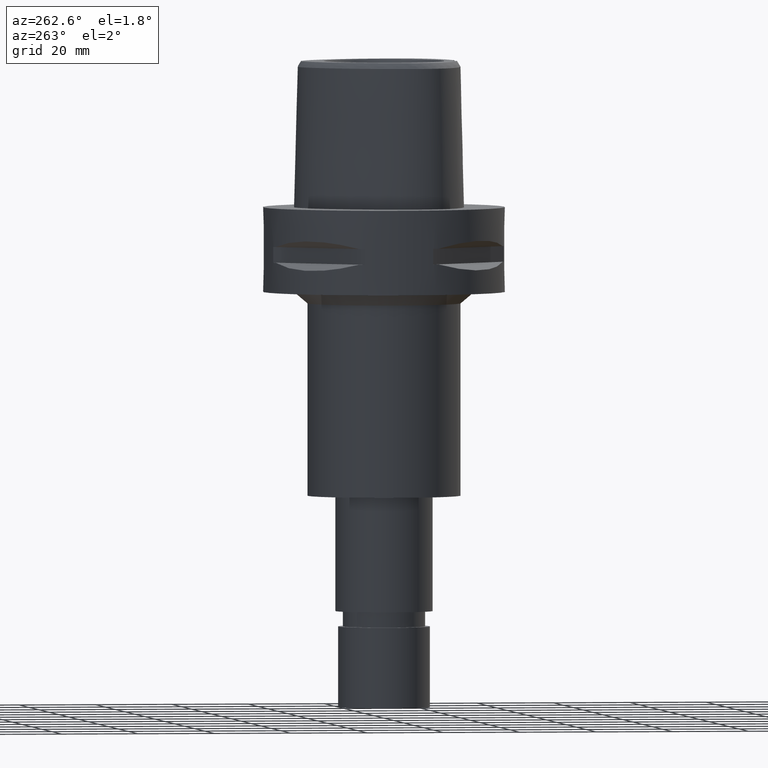
[diagram: clean part render]
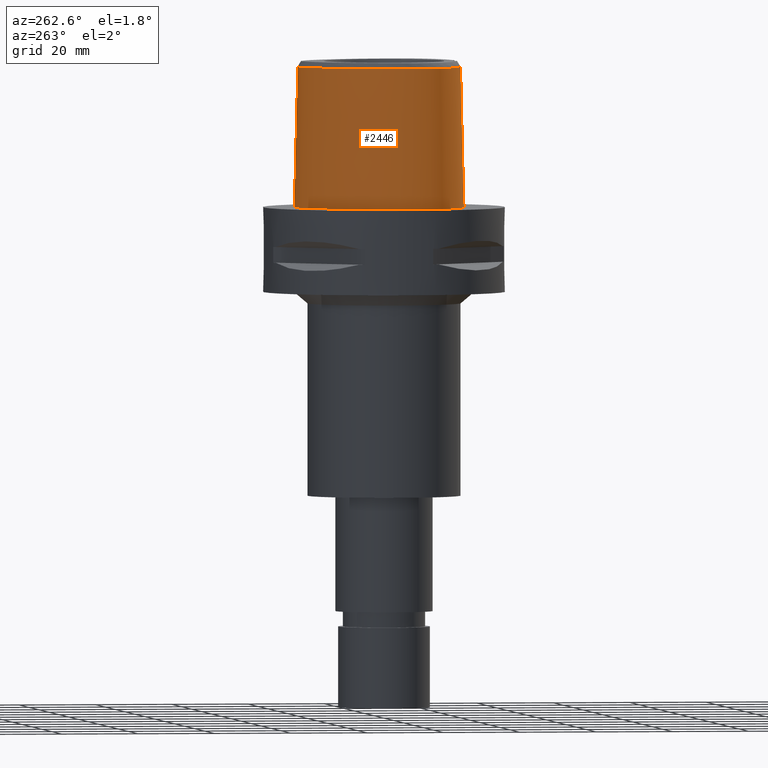
[diagram: same view with one face highlighted and labeled with its STEP entity id]
A machine part, auxiliary view. The second image highlights one B-rep face of the part: STEP entity #2446.
In plain terms, the highlighted face is a freeform B-spline surface patch.
Its self-contained STEP definition (entity closure, byte-faithful):
#192=CARTESIAN_POINT('',(-3.637738201364E0,-1.956971413237E1,3.652186244848E1));
#193=CARTESIAN_POINT('',(-4.560158907346E0,-1.947143337625E1,3.652183460621E1));
#194=CARTESIAN_POINT('',(-6.332490901644E0,-1.920572733587E1,3.652188379830E1));
#195=CARTESIAN_POINT('',(-8.740534769296E0,-1.863605197490E1,3.652185473939E1));
#196=CARTESIAN_POINT('',(-1.078875333779E1,-1.797109471699E1,3.652187883629E1));
#197=CARTESIAN_POINT('',(-1.260106402785E1,-1.721902815734E1,3.652186366389E1));
#198=CARTESIAN_POINT('',(-1.425647951327E1,-1.635855614140E1,3.652186983084E1));
#199=CARTESIAN_POINT('',(-1.570742126751E1,-1.542180822191E1,3.652187070094E1));
#200=CARTESIAN_POINT('',(-1.692838495225E1,-1.445243579093E1,3.652186371196E1));
#201=CARTESIAN_POINT('',(-1.794807955122E1,-1.346119101780E1,3.652187504976E1));
#202=CARTESIAN_POINT('',(-1.879347921895E1,-1.244911691061E1,3.652185110221E1));
#203=CARTESIAN_POINT('',(-1.948233597599E1,-1.142172722407E1,3.652186520296E1));
#204=CARTESIAN_POINT('',(-2.005025596415E1,-1.033879974977E1,3.652187120918E1));
#205=CARTESIAN_POINT('',(-2.052689249114E1,-9.137426659141E0,3.652187389002E1));
#206=CARTESIAN_POINT('',(-2.090372515842E1,-7.793064566768E0,3.652186861290E1));
#207=CARTESIAN_POINT('',(-2.116402580445E1,-6.298266466778E0,3.652186520813E1));
#208=CARTESIAN_POINT('',(-2.128915805881E1,-4.610628511458E0,3.652187207782E1));
#209=CARTESIAN_POINT('',(-2.124899103472E1,-2.770628323703E0,3.652186448572E1));
#210=CARTESIAN_POINT('',(-2.103746568196E1,-8.521470214658E-1,
3.652186904573E1));
#211=CARTESIAN_POINT('',(-2.064453108235E1,1.191621979844E0,3.652186470490E1));
#212=CARTESIAN_POINT('',(-2.000834842177E1,3.491890258725E0,3.652186280489E1));
#213=CARTESIAN_POINT('',(-1.908297293211E1,5.996252166364E0,3.652187047901E1));
#214=CARTESIAN_POINT('',(-1.790343325696E1,8.519299290575E0,3.652185757552E1));
#215=CARTESIAN_POINT('',(-1.649956399231E1,1.097698504016E1,3.652186524308E1));
#216=CARTESIAN_POINT('',(-1.492053239747E1,1.328144481386E1,3.652186970709E1));
#217=CARTESIAN_POINT('',(-1.322428615311E1,1.536354361130E1,3.652186377725E1));
#218=CARTESIAN_POINT('',(-1.153399233131E1,1.711359257375E1,3.652186042581E1));
#219=CARTESIAN_POINT('',(-9.949618507775E0,1.850927678704E1,3.652187154028E1));
#220=CARTESIAN_POINT('',(-8.389884192782E0,1.967566957136E1,3.652186493940E1));
#221=CARTESIAN_POINT('',(-6.831967983638E0,2.064216380886E1,3.652187265771E1));
#222=CARTESIAN_POINT('',(-5.310871754551E0,2.139896711785E1,3.652186762590E1));
#223=CARTESIAN_POINT('',(-3.868196932843E0,2.194740320780E1,3.652186656051E1));
#224=CARTESIAN_POINT('',(-2.510941578303E0,2.231222700870E1,3.652187435400E1));
#225=CARTESIAN_POINT('',(-1.219201044760E0,2.251876035111E1,3.652180035304E1));
#226=CARTESIAN_POINT('',(-4.071750475777E-1,2.256201468012E1,3.652186680743E1));
#227=CARTESIAN_POINT('',(-1.721533821430E-11,2.256201468012E1,
3.652186680744E1));
#239=CARTESIAN_POINT('',(-3.637738201364E0,-1.956971413237E1,3.652186244848E1));
#240=CARTESIAN_POINT('',(-3.649042726833E0,-1.958170231834E1,3.599710491520E1));
#241=CARTESIAN_POINT('',(-3.671106183707E0,-1.960533297179E1,3.494764182412E1));
#242=CARTESIAN_POINT('',(-3.704089539557E0,-1.964135162194E1,3.337369009748E1));
#243=CARTESIAN_POINT('',(-3.726005756395E0,-1.966575923510E1,3.232454432382E1));
#244=CARTESIAN_POINT('',(-3.736696126116E0,-1.967778323257E1,3.18E1));
#249=DIRECTION('',(-1.665636293796E-9,-2.499140646182E-2,-9.996876660253E-1));
#250=VECTOR('',#249,1.225382733632E1);
#251=CARTESIAN_POINT('',(2.041042029991E-8,-1.988004246002E1,3.180000004972E1));
#252=LINE('',#251,#250);
#256=CARTESIAN_POINT('',(0.E0,-2.018628283969E1,1.955E1));
#257=CARTESIAN_POINT('',(-3.535025939877E-1,-2.018628283969E1,1.955E1));
#258=CARTESIAN_POINT('',(-1.060473937797E0,-2.017767216830E1,1.945681925277E1));
#259=CARTESIAN_POINT('',(-2.047701543704E0,-2.014309980526E1,1.904804674692E1));
#260=CARTESIAN_POINT('',(-2.897566485546E0,-2.009784253651E1,1.839607694624E1));
#261=CARTESIAN_POINT('',(-3.549651586843E0,-2.005725832781E1,1.754541454944E1));
#262=CARTESIAN_POINT('',(-3.958413413604E0,-2.003677385322E1,1.655463469819E1));
#263=CARTESIAN_POINT('',(-4.096145834776E0,-2.004693977811E1,1.549746639839E1));
#264=CARTESIAN_POINT('',(-3.956998654836E0,-2.009014971096E1,1.444056005517E1));
#265=CARTESIAN_POINT('',(-3.548403793673E0,-2.016023887783E1,1.345303113610E1));
#266=CARTESIAN_POINT('',(-2.897581606986E0,-2.024315417861E1,1.260386165506E1));
#267=CARTESIAN_POINT('',(-2.045567629947E0,-2.032097908031E1,1.195043067914E1));
#268=CARTESIAN_POINT('',(-1.056750709433E0,-2.037569617876E1,1.154226914409E1));
#269=CARTESIAN_POINT('',(-3.518691721553E-1,-2.038876923348E1,1.145E1));
#270=CARTESIAN_POINT('',(-9.433993878922E-13,-2.038876923348E1,1.145E1));
#275=DIRECTION('',(-5.771733019309E-13,-2.499051295390E-2,-9.996876883619E-1));
#276=VECTOR('',#275,1.145357708542E1);
#277=CARTESIAN_POINT('',(-9.433993878922E-13,-2.038876923348E1,1.145E1));
#278=LINE('',#277,#276);
#340=CARTESIAN_POINT('',(4.563147377965E-11,2.347499999999E1,
5.514107688972E-14));
#341=CARTESIAN_POINT('',(-4.146369803762E-1,2.347499999999E1,
5.514107688972E-14));
#342=CARTESIAN_POINT('',(-1.261769283380E0,2.343214404896E1,
-2.559106284495E-14));
#343=CARTESIAN_POINT('',(-2.581151367777E0,2.322972899416E1,0.E0));
#344=CARTESIAN_POINT('',(-3.963955223680E0,2.287417817924E1,0.E0));
#345=CARTESIAN_POINT('',(-5.416410883203E0,2.234583206214E1,0.E0));
#346=CARTESIAN_POINT('',(-6.943963820642E0,2.162055067075E1,0.E0));
#347=CARTESIAN_POINT('',(-8.546562613361E0,2.067110855086E1,0.E0));
#348=CARTESIAN_POINT('',(-1.021591793266E1,1.947050358962E1,0.E0));
#349=CARTESIAN_POINT('',(-1.193265892210E1,1.799659333497E1,0.E0));
#350=CARTESIAN_POINT('',(-1.366187567380E1,1.624119475134E1,0.E0));
#351=CARTESIAN_POINT('',(-1.535536276914E1,1.421588744194E1,0.E0));
#352=CARTESIAN_POINT('',(-1.695154970834E1,1.196273951856E1,0.E0));
#353=CARTESIAN_POINT('',(-1.838926030375E1,9.548635880090E0,0.E0));
#354=CARTESIAN_POINT('',(-1.962133987807E1,7.049146925036E0,0.E0));
#355=CARTESIAN_POINT('',(-2.061435990297E1,4.550643648138E0,0.E0));
#356=CARTESIAN_POINT('',(-2.135514936018E1,2.133582093255E0,0.E0));
#357=CARTESIAN_POINT('',(-2.185212389229E1,-1.457936405733E-1,0.E0));
#358=CARTESIAN_POINT('',(-2.212691486636E1,-2.253623760176E0,0.E0));
#359=CARTESIAN_POINT('',(-2.220771557397E1,-4.179131729167E0,0.E0));
#360=CARTESIAN_POINT('',(-2.212280964939E1,-5.923899373955E0,0.E0));
#361=CARTESIAN_POINT('',(-2.189733287562E1,-7.500236824242E0,0.E0));
#362=CARTESIAN_POINT('',(-2.155157325801E1,-8.923804946215E0,0.E0));
#363=CARTESIAN_POINT('',(-2.109976738570E1,-1.021229684822E1,0.E0));
#364=CARTESIAN_POINT('',(-2.055361095219E1,-1.137932601044E1,0.E0));
#365=CARTESIAN_POINT('',(-1.990268084837E1,-1.246296115997E1,0.E0));
#366=CARTESIAN_POINT('',(-1.912079644801E1,-1.350746708852E1,0.E0));
#367=CARTESIAN_POINT('',(-1.817598660389E1,-1.453694700062E1,0.E0));
#368=CARTESIAN_POINT('',(-1.705588452346E1,-1.553926995104E1,0.E0));
#369=CARTESIAN_POINT('',(-1.573520699537E1,-1.651184072859E1,0.E0));
#370=CARTESIAN_POINT('',(-1.419020473772E1,-1.744259491527E1,0.E0));
#371=CARTESIAN_POINT('',(-1.239948808272E1,-1.831330611511E1,0.E0));
#372=CARTESIAN_POINT('',(-1.035005531072E1,-1.909824432408E1,0.E0));
#373=CARTESIAN_POINT('',(-8.043778815247E0,-1.976500909009E1,0.E0));
#374=CARTESIAN_POINT('',(-5.509328552198E0,-2.027746157226E1,0.E0));
#375=CARTESIAN_POINT('',(-2.793839529268E0,-2.060120158770E1,
-2.694790443203E-14));
#376=CARTESIAN_POINT('',(-9.425390336257E-1,-2.0675E1,5.806466418790E-14));
#377=CARTESIAN_POINT('',(-7.554098293205E-12,-2.0675E1,5.806466418790E-14));
#1179=DIRECTION('',(1.720262125002E-12,2.499051290963E-2,-9.996876883630E-1));
#1180=VECTOR('',#1179,3.653327657485E1);
#1181=CARTESIAN_POINT('',(-1.721533821430E-11,2.256201468012E1,
3.652186680744E1));
#1182=LINE('',#1181,#1180);
#1558=CARTESIAN_POINT('',(2.041042029991E-8,-1.988004246002E1,
3.180000004972E1));
#1559=CARTESIAN_POINT('',(-4.161790280178E-1,-1.988004245993E1,
3.180000004972E1));
#1560=CARTESIAN_POINT('',(-1.247889105566E0,-1.986528007158E1,
3.179999997680E1));
#1561=CARTESIAN_POINT('',(-2.494485023973E0,-1.979770229313E1,
3.180000000663E1));
#1562=CARTESIAN_POINT('',(-3.322953884429E0,-1.972294683092E1,3.18E1));
#1563=CARTESIAN_POINT('',(-3.736696126116E0,-1.967778323257E1,3.18E1));
#1599=CARTESIAN_POINT('',(-3.736722311399E0,-1.967781602444E1,3.18E1));
#1600=VERTEX_POINT('',#1599);
#1601=VERTEX_POINT('',#239);
#1602=CARTESIAN_POINT('',(-1.721533821430E-11,2.256201468012E1,
3.652186680744E1));
#1603=VERTEX_POINT('',#1602);
#1604=VERTEX_POINT('',#340);
#1605=VERTEX_POINT('',#377);
#1606=VERTEX_POINT('',#1558);
#1607=CARTESIAN_POINT('',(0.E0,-2.018628283969E1,1.955E1));
#1608=VERTEX_POINT('',#1607);
#1609=VERTEX_POINT('',#270);
#2329=CARTESIAN_POINT('',(7.234356448050E-1,2.347140592165E1,
-7.304374775381E-1));
#2330=CARTESIAN_POINT('',(7.042335328168E-1,2.315549828840E1,1.193047879979E1));
#2331=CARTESIAN_POINT('',(6.850314208285E-1,2.283959065515E1,2.459139507712E1));
#2332=CARTESIAN_POINT('',(6.658293088403E-1,2.252368302190E1,3.725231135444E1));
#2333=CARTESIAN_POINT('',(4.823619555362E-1,2.348603817709E1,
-7.304374775381E-1));
#2334=CARTESIAN_POINT('',(4.696382080663E-1,2.316972813881E1,1.193047879979E1));
#2335=CARTESIAN_POINT('',(4.569144605964E-1,2.285341810053E1,2.459139507712E1));
#2336=CARTESIAN_POINT('',(4.441907131266E-1,2.253710806224E1,3.725231135444E1));
#2337=CARTESIAN_POINT('',(-6.149727124359E-1,2.351889464422E1,
-7.304374775381E-1));
#2338=CARTESIAN_POINT('',(-5.985508228287E-1,2.320171286092E1,
1.193047879979E1));
#2339=CARTESIAN_POINT('',(-5.821289332215E-1,2.288453107761E1,
2.459139507712E1));
#2340=CARTESIAN_POINT('',(-5.657070436142E-1,2.256734929430E1,
3.725231135444E1));
#2341=CARTESIAN_POINT('',(-2.568271204741E0,2.331126237893E1,
-7.304374775381E-1));
#2342=CARTESIAN_POINT('',(-2.503210923157E0,2.299958947745E1,1.193047879979E1));
#2343=CARTESIAN_POINT('',(-2.438150641574E0,2.268791657596E1,2.459139507712E1));
#2344=CARTESIAN_POINT('',(-2.373090359991E0,2.237624367448E1,3.725231135444E1));
#2345=CARTESIAN_POINT('',(-5.105252914219E0,2.254305023769E1,
-7.304374775381E-1));
#2346=CARTESIAN_POINT('',(-4.987110700673E0,2.224795288867E1,1.193047879979E1));
#2347=CARTESIAN_POINT('',(-4.868968487127E0,2.195285553966E1,2.459139507712E1));
#2348=CARTESIAN_POINT('',(-4.750826273582E0,2.165775819064E1,3.725231135444E1));
#2349=CARTESIAN_POINT('',(-7.580410837597E0,2.133037925853E1,
-7.304374775381E-1));
#2350=CARTESIAN_POINT('',(-7.420053181329E0,2.105635752732E1,1.193047879979E1));
#2351=CARTESIAN_POINT('',(-7.259695525060E0,2.078233579612E1,2.459139507712E1));
#2352=CARTESIAN_POINT('',(-7.099337868792E0,2.050831406491E1,3.725231135444E1));
#2353=CARTESIAN_POINT('',(-1.075753573489E1,1.918839675363E1,
-7.304374775381E-1));
#2354=CARTESIAN_POINT('',(-1.055288411376E1,1.894467594069E1,1.193047879979E1));
#2355=CARTESIAN_POINT('',(-1.034823249263E1,1.870095512775E1,2.459139507712E1));
#2356=CARTESIAN_POINT('',(-1.014358087150E1,1.845723431481E1,3.725231135444E1));
#2357=CARTESIAN_POINT('',(-1.442198651614E1,1.565278599924E1,
-7.304374775381E-1));
#2358=CARTESIAN_POINT('',(-1.417879765577E1,1.544741201229E1,1.193047879979E1));
#2359=CARTESIAN_POINT('',(-1.393560879541E1,1.524203802533E1,2.459139507712E1));
#2360=CARTESIAN_POINT('',(-1.369241993504E1,1.503666403838E1,3.725231135444E1));
#2361=CARTESIAN_POINT('',(-1.808416037878E1,1.044089486960E1,
-7.304374775381E-1));
#2362=CARTESIAN_POINT('',(-1.780867315791E1,1.028184212998E1,1.193047879979E1));
#2363=CARTESIAN_POINT('',(-1.753318593703E1,1.012278939036E1,2.459139507712E1));
#2364=CARTESIAN_POINT('',(-1.725769871615E1,9.963736650735E0,3.725231135444E1));
#2365=CARTESIAN_POINT('',(-2.076670354436E1,4.663413652273E0,
-7.304374775381E-1));
#2366=CARTESIAN_POINT('',(-2.046725052795E1,4.555493679550E0,1.193047879979E1));
#2367=CARTESIAN_POINT('',(-2.016779751153E1,4.447573706828E0,2.459139507712E1));
#2368=CARTESIAN_POINT('',(-1.986834449512E1,4.339653734105E0,3.725231135444E1));
#2369=CARTESIAN_POINT('',(-2.199640701095E1,-2.778990171100E-1,
-7.304374775381E-1));
#2370=CARTESIAN_POINT('',(-2.168301110422E1,-3.332743872047E-1,
1.193047879979E1));
#2371=CARTESIAN_POINT('',(-2.136961519749E1,-3.886497572994E-1,
2.459139507712E1));
#2372=CARTESIAN_POINT('',(-2.105621929076E1,-4.440251273942E-1,
3.725231135444E1));
#2373=CARTESIAN_POINT('',(-2.226285556032E1,-4.100361500078E0,
-7.304374775381E-1));
#2374=CARTESIAN_POINT('',(-2.194536987633E1,-4.102220498717E0,
1.193047879979E1));
#2375=CARTESIAN_POINT('',(-2.162788419234E1,-4.104079497355E0,
2.459139507712E1));
#2376=CARTESIAN_POINT('',(-2.131039850835E1,-4.105938495994E0,
3.725231135444E1));
#2377=CARTESIAN_POINT('',(-2.207548128609E1,-6.850245534763E0,
-7.304374775381E-1));
#2378=CARTESIAN_POINT('',(-2.176083720965E1,-6.805026057194E0,
1.193047879979E1));
#2379=CARTESIAN_POINT('',(-2.144619313320E1,-6.759806579625E0,
2.459139507712E1));
#2380=CARTESIAN_POINT('',(-2.113154905675E1,-6.714587102056E0,
3.725231135444E1));
#2381=CARTESIAN_POINT('',(-2.157281238777E1,-9.001246193742E0,
-7.304374775381E-1));
#2382=CARTESIAN_POINT('',(-2.126836750807E1,-8.910752273044E0,
1.193047879979E1));
#2383=CARTESIAN_POINT('',(-2.096392262837E1,-8.820258352346E0,
2.459139507712E1));
#2384=CARTESIAN_POINT('',(-2.065947774868E1,-8.729764431647E0,
3.725231135444E1));
#2385=CARTESIAN_POINT('',(-2.094844325404E1,-1.061175396793E1,
-7.304374775381E-1));
#2386=CARTESIAN_POINT('',(-2.065879056737E1,-1.048283623217E1,
1.193047879979E1));
#2387=CARTESIAN_POINT('',(-2.036913788070E1,-1.035391849640E1,
2.459139507712E1));
#2388=CARTESIAN_POINT('',(-2.007948519403E1,-1.022500076064E1,
3.725231135444E1));
#2389=CARTESIAN_POINT('',(-2.036546124075E1,-1.175800452955E1,
-7.304374775381E-1));
#2390=CARTESIAN_POINT('',(-2.009084481767E1,-1.159945466316E1,
1.193047879979E1));
#2391=CARTESIAN_POINT('',(-1.981622839458E1,-1.144090479676E1,
2.459139507712E1));
#2392=CARTESIAN_POINT('',(-1.954161197150E1,-1.128235493037E1,
3.725231135444E1));
#2393=CARTESIAN_POINT('',(-1.966427014217E1,-1.283600704376E1,
-7.304374775381E-1));
#2394=CARTESIAN_POINT('',(-1.940779776090E1,-1.264961932694E1,
1.193047879979E1));
#2395=CARTESIAN_POINT('',(-1.915132537962E1,-1.246323161012E1,
2.459139507712E1));
#2396=CARTESIAN_POINT('',(-1.889485299834E1,-1.227684389330E1,
3.725231135444E1));
#2397=CARTESIAN_POINT('',(-1.858171406220E1,-1.418198046202E1,
-7.304374775381E-1));
#2398=CARTESIAN_POINT('',(-1.835112160881E1,-1.396357042241E1,
1.193047879979E1));
#2399=CARTESIAN_POINT('',(-1.812052915543E1,-1.374516038280E1,
2.459139507712E1));
#2400=CARTESIAN_POINT('',(-1.788993670205E1,-1.352675034320E1,
3.725231135444E1));
#2401=CARTESIAN_POINT('',(-1.697022730796E1,-1.569280482716E1,
-7.304374775381E-1));
#2402=CARTESIAN_POINT('',(-1.677374388615E1,-1.544292480222E1,
1.193047879979E1));
#2403=CARTESIAN_POINT('',(-1.657726046434E1,-1.519304477729E1,
2.459139507712E1));
#2404=CARTESIAN_POINT('',(-1.638077704253E1,-1.494316475235E1,
3.725231135444E1));
#2405=CARTESIAN_POINT('',(-1.468244496869E1,-1.723001772589E1,
-7.304374775381E-1));
#2406=CARTESIAN_POINT('',(-1.452531267754E1,-1.695413756041E1,
1.193047879979E1));
#2407=CARTESIAN_POINT('',(-1.436818038639E1,-1.667825739493E1,
2.459139507712E1));
#2408=CARTESIAN_POINT('',(-1.421104809524E1,-1.640237722945E1,
3.725231135444E1));
#2409=CARTESIAN_POINT('',(-1.123887130079E1,-1.891049775538E1,
-7.304374775381E-1));
#2410=CARTESIAN_POINT('',(-1.113012658652E1,-1.861140124560E1,
1.193047879979E1));
#2411=CARTESIAN_POINT('',(-1.102138187225E1,-1.831230473583E1,
2.459139507712E1));
#2412=CARTESIAN_POINT('',(-1.091263715798E1,-1.801320822605E1,
3.725231135444E1));
#2413=CARTESIAN_POINT('',(-6.344715575799E0,-2.031619964467E1,
-7.304374775381E-1));
#2414=CARTESIAN_POINT('',(-6.288476594949E0,-2.000290580380E1,
1.193047879979E1));
#2415=CARTESIAN_POINT('',(-6.232237614098E0,-1.968961196293E1,
2.459139507712E1));
#2416=CARTESIAN_POINT('',(-6.175998633247E0,-1.937631812206E1,
3.725231135444E1));
#2417=CARTESIAN_POINT('',(-1.886862291964E0,-2.071358859407E1,
-7.304374775381E-1));
#2418=CARTESIAN_POINT('',(-1.870070496467E0,-2.039691400885E1,
1.193047879979E1));
#2419=CARTESIAN_POINT('',(-1.853278700970E0,-2.008023942364E1,
2.459139507712E1));
#2420=CARTESIAN_POINT('',(-1.836486905473E0,-1.976356483843E1,
3.725231135444E1));
#2421=CARTESIAN_POINT('',(4.560943669458E-1,-2.069106767974E1,
-7.304374775381E-1));
#2422=CARTESIAN_POINT('',(4.520368092534E-1,-2.037458468883E1,
1.193047879979E1));
#2423=CARTESIAN_POINT('',(4.479792515610E-1,-2.005810169791E1,
2.459139507712E1));
#2424=CARTESIAN_POINT('',(4.439216938686E-1,-1.974161870699E1,
3.725231135444E1));
#2425=CARTESIAN_POINT('',(6.840430852594E-1,-2.068668154482E1,
-7.304374775381E-1));
#2426=CARTESIAN_POINT('',(6.779535358955E-1,-2.037023530720E1,
1.193047879979E1));
#2427=CARTESIAN_POINT('',(6.718639865317E-1,-2.005378906957E1,
2.459139507712E1));
#2428=CARTESIAN_POINT('',(6.657744371678E-1,-1.973734283195E1,
3.725231135444E1));
#2429=B_SPLINE_SURFACE_WITH_KNOTS('',3,3,((#2329,#2330,#2331,#2332),(#2333,
#2334,#2335,#2336),(#2337,#2338,#2339,#2340),(#2341,#2342,#2343,#2344),(#2345,
#2346,#2347,#2348),(#2349,#2350,#2351,#2352),(#2353,#2354,#2355,#2356),(#2357,
#2358,#2359,#2360),(#2361,#2362,#2363,#2364),(#2365,#2366,#2367,#2368),(#2369,
#2370,#2371,#2372),(#2373,#2374,#2375,#2376),(#2377,#2378,#2379,#2380),(#2381,
#2382,#2383,#2384),(#2385,#2386,#2387,#2388),(#2389,#2390,#2391,#2392),(#2393,
#2394,#2395,#2396),(#2397,#2398,#2399,#2400),(#2401,#2402,#2403,#2404),(#2405,
#2406,#2407,#2408),(#2409,#2410,#2411,#2412),(#2413,#2414,#2415,#2416),(#2417,
#2418,#2419,#2420),(#2421,#2422,#2423,#2424),(#2425,#2426,#2427,#2428)),
.UNSPECIFIED.,.F.,.F.,.F.,(4,1,1,1,1,1,1,1,1,1,1,1,1,1,1,1,1,1,1,1,1,1,4),(4,4),
(-1.173777939046E-2,0.E0,4.166666666737E-2,8.333333333399E-2,1.250000000006E-1,
1.666666666673E-1,2.500000000005E-1,3.333333333337E-1,4.166666666670E-1,
5.000000000003E-1,5.416666666669E-1,5.833333333335E-1,6.250000000001E-1,
6.458333333334E-1,6.666666666668E-1,6.875000000001E-1,7.083333333333E-1,7.5E-1,
7.916666666667E-1,8.333333333332E-1,9.166666666665E-1,1.E0,1.008985696609E0),(
6.713290631732E-9,9.999996576221E-1),.UNSPECIFIED.);
#2431=ORIENTED_EDGE('',*,*,#2430,.F.);
#2433=ORIENTED_EDGE('',*,*,#2432,.F.);
#2434=ORIENTED_EDGE('',*,*,#2322,.F.);
#2435=ORIENTED_EDGE('',*,*,#1807,.T.);
#2437=ORIENTED_EDGE('',*,*,#2436,.F.);
#2439=ORIENTED_EDGE('',*,*,#2438,.T.);
#2441=ORIENTED_EDGE('',*,*,#2440,.T.);
#2443=ORIENTED_EDGE('',*,*,#2442,.T.);
#2444=EDGE_LOOP('',(#2431,#2433,#2434,#2435,#2437,#2439,#2441,#2443));
#2445=FACE_OUTER_BOUND('',#2444,.F.);
#228=B_SPLINE_CURVE_WITH_KNOTS('',3,(#192,#193,#194,#195,#196,#197,#198,#199,
#200,#201,#202,#203,#204,#205,#206,#207,#208,#209,#210,#211,#212,#213,#214,#215,
#216,#217,#218,#219,#220,#221,#222,#223,#224,#225,#226,#227),.UNSPECIFIED.,.F.,
.F.,(4,1,1,1,1,1,1,1,1,1,1,1,1,1,1,1,1,1,1,1,1,1,1,1,1,1,1,1,1,1,1,1,1,4),(0.E0,
3.030303030303E-2,6.060606060606E-2,9.090909090909E-2,1.212121212121E-1,
1.515151515152E-1,1.818181818182E-1,2.121212121212E-1,2.424242424242E-1,
2.727272727273E-1,3.030303030303E-1,3.333333333333E-1,3.636363636364E-1,
3.939393939394E-1,4.242424242424E-1,4.545454545455E-1,4.848484848485E-1,
5.151515151515E-1,5.454545454545E-1,5.757575757576E-1,6.060606060606E-1,
6.363636363636E-1,6.666666666667E-1,6.969696969697E-1,7.272727272727E-1,
7.575757575758E-1,7.878787878788E-1,8.181818181818E-1,8.484848484848E-1,
8.787878787879E-1,9.090909090909E-1,9.393939393939E-1,9.696969696970E-1,1.E0),
.UNSPECIFIED.);
#245=B_SPLINE_CURVE_WITH_KNOTS('',3,(#239,#240,#241,#242,#243,#244),
.UNSPECIFIED.,.F.,.F.,(4,1,1,4),(0.E0,3.333333333333E-1,6.666666666667E-1,1.E0),
.UNSPECIFIED.);
#271=B_SPLINE_CURVE_WITH_KNOTS('',3,(#256,#257,#258,#259,#260,#261,#262,#263,
#264,#265,#266,#267,#268,#269,#270),.UNSPECIFIED.,.F.,.F.,(4,1,1,1,1,1,1,1,1,1,
1,1,4),(0.E0,8.333333333333E-2,1.666666666667E-1,2.5E-1,3.333333333333E-1,
4.166666666667E-1,5.E-1,5.833333333333E-1,6.666666666667E-1,7.5E-1,
8.333333333333E-1,9.166666666667E-1,1.E0),.UNSPECIFIED.);
#378=B_SPLINE_CURVE_WITH_KNOTS('',3,(#340,#341,#342,#343,#344,#345,#346,#347,
#348,#349,#350,#351,#352,#353,#354,#355,#356,#357,#358,#359,#360,#361,#362,#363,
#364,#365,#366,#367,#368,#369,#370,#371,#372,#373,#374,#375,#376,#377),
.UNSPECIFIED.,.F.,.F.,(4,1,1,1,1,1,1,1,1,1,1,1,1,1,1,1,1,1,1,1,1,1,1,1,1,1,1,1,
1,1,1,1,1,1,1,4),(0.E0,2.857142857143E-2,5.714285714286E-2,8.571428571429E-2,
1.142857142857E-1,1.428571428571E-1,1.714285714286E-1,2.E-1,2.285714285714E-1,
2.571428571429E-1,2.857142857143E-1,3.142857142857E-1,3.428571428571E-1,
3.714285714286E-1,4.E-1,4.285714285714E-1,4.571428571429E-1,4.857142857143E-1,
5.142857142857E-1,5.428571428571E-1,5.714285714286E-1,6.E-1,6.285714285714E-1,
6.571428571429E-1,6.857142857143E-1,7.142857142857E-1,7.428571428571E-1,
7.714285714286E-1,8.E-1,8.285714285714E-1,8.571428571429E-1,8.857142857143E-1,
9.142857142857E-1,9.428571428571E-1,9.714285714286E-1,1.E0),.UNSPECIFIED.);
#1564=B_SPLINE_CURVE_WITH_KNOTS('',3,(#1558,#1559,#1560,#1561,#1562,#1563),
.UNSPECIFIED.,.F.,.F.,(4,1,1,4),(0.E0,3.333333333333E-1,6.666666666667E-1,1.E0),
.UNSPECIFIED.);
#1807=EDGE_CURVE('',#1601,#1600,#245,.T.);
#2322=EDGE_CURVE('',#1601,#1603,#228,.T.);
#2430=EDGE_CURVE('',#1604,#1605,#378,.T.);
#2432=EDGE_CURVE('',#1603,#1604,#1182,.T.);
#2436=EDGE_CURVE('',#1606,#1600,#1564,.T.);
#2438=EDGE_CURVE('',#1606,#1608,#252,.T.);
#2440=EDGE_CURVE('',#1608,#1609,#271,.T.);
#2442=EDGE_CURVE('',#1609,#1605,#278,.T.);
#2446=ADVANCED_FACE('',(#2445),#2429,.T.);